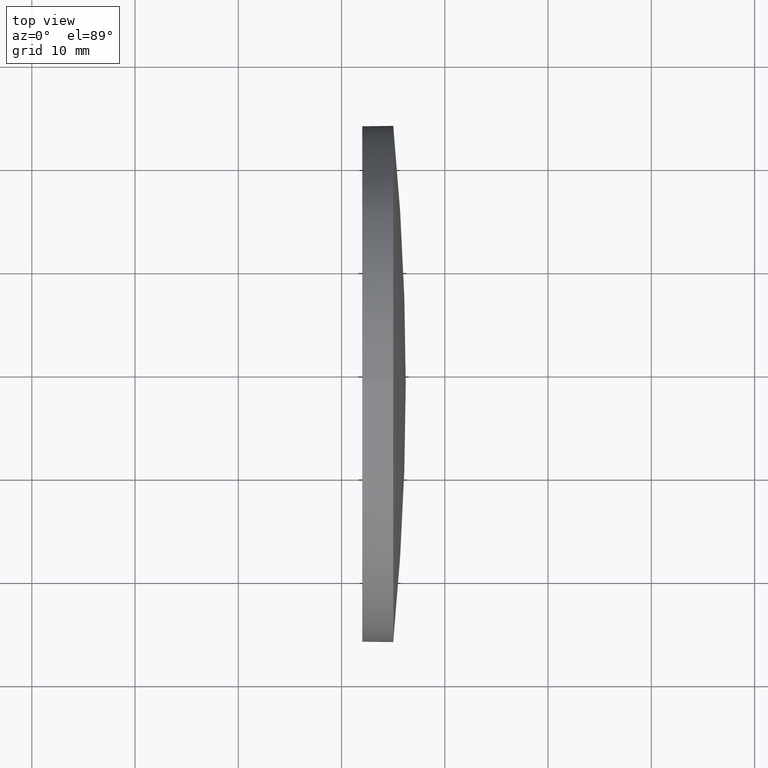
[diagram: clean part render]
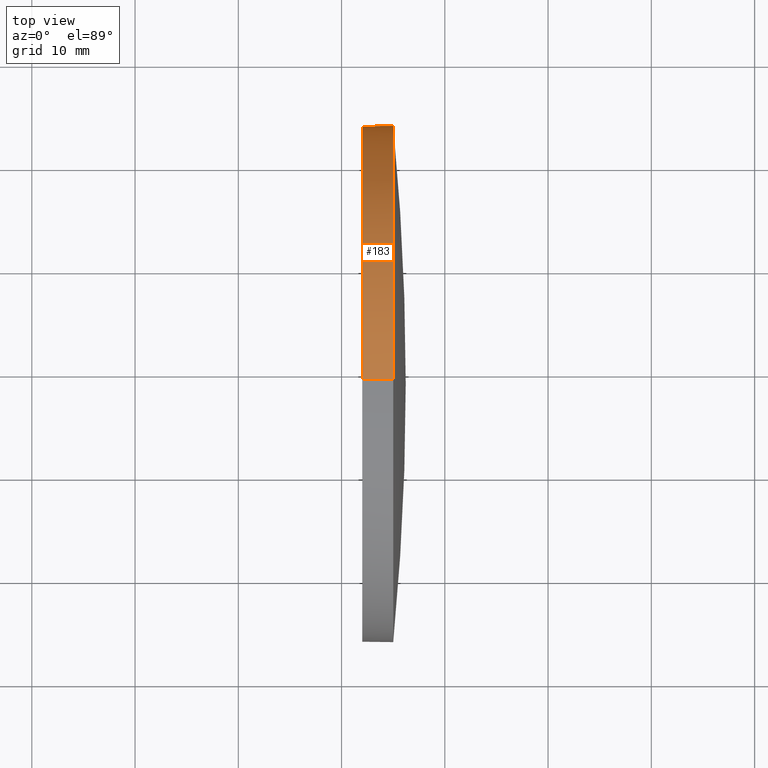
[diagram: same view with one face highlighted and labeled with its STEP entity id]
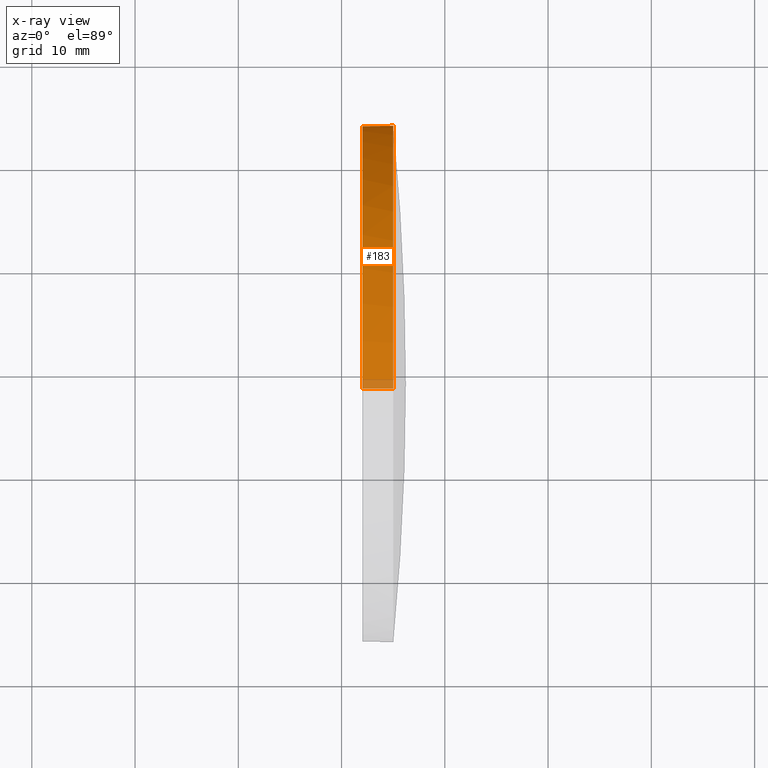
[diagram: x-ray of the same camera — body ghosted, the highlighted face saturated]
A machine part, top view. The second image highlights one B-rep face of the part: STEP entity #183.
The next image is the same camera in x-ray: the body ghosted, the highlighted face saturated — about 3% of this face is hidden behind the body in this view.
In plain terms, the highlighted cylindrical surface (partial cylindrical patch) has radius 25 mm, axis along (-1, -0, -0).
Its self-contained STEP definition (entity closure, byte-faithful):
#1 = DIRECTION ( 'NONE',  ( -1.000000000000000000, -0.0000000000000000000, -0.0000000000000000000 ) ) ;
#2 = DIRECTION ( 'NONE',  ( -1.000000000000000000, -0.0000000000000000000, -0.0000000000000000000 ) ) ;
#4 = CARTESIAN_POINT ( 'NONE',  ( 462.0046362820362400, 88.87131801322505000, 25.00000000000000700 ) ) ;
#10 = EDGE_CURVE ( 'NONE', #184, #167, #181, .T. ) ;
#13 = AXIS2_PLACEMENT_3D ( 'NONE', #74, #2, #104 ) ;
#23 = ORIENTED_EDGE ( 'NONE', *, *, #156, .F. ) ;
#28 = CARTESIAN_POINT ( 'NONE',  ( 465.0046362820362400, 113.8713180132250400, 0.0000000000000000000 ) ) ;
#40 = VERTEX_POINT ( 'NONE', #28 ) ;
#42 = VECTOR ( 'NONE', #124, 1000.000000000000000 ) ;
#44 = CIRCLE ( 'NONE', #129, 25.00000000000000700 ) ;
#45 = DIRECTION ( 'NONE',  ( -1.000000000000000000, -0.0000000000000000000, -0.0000000000000000000 ) ) ;
#48 = CIRCLE ( 'NONE', #13, 25.00000000000000700 ) ;
#51 = VERTEX_POINT ( 'NONE', #151 ) ;
#52 = AXIS2_PLACEMENT_3D ( 'NONE', #120, #106, #88 ) ;
#61 = ORIENTED_EDGE ( 'NONE', *, *, #123, .T. ) ;
#69 = CARTESIAN_POINT ( 'NONE',  ( 457.8596245327955800, 88.87131801322505000, 25.00000000000000700 ) ) ;
#74 = CARTESIAN_POINT ( 'NONE',  ( 465.0046362820362400, 88.87131801322505000, 0.0000000000000000000 ) ) ;
#75 = DIRECTION ( 'NONE',  ( 0.0000000000000000000, 0.0000000000000000000, 1.000000000000000000 ) ) ;
#78 = AXIS2_PLACEMENT_3D ( 'NONE', #148, #45, #176 ) ;
#81 = CYLINDRICAL_SURFACE ( 'NONE', #78, 25.00000000000000700 ) ;
#88 = DIRECTION ( 'NONE',  ( 0.0000000000000000000, 0.0000000000000000000, 1.000000000000000000 ) ) ;
#89 = FACE_OUTER_BOUND ( 'NONE', #139, .T. ) ;
#96 = EDGE_CURVE ( 'NONE', #40, #142, #158, .T. ) ;
#97 = LINE ( 'NONE', #182, #144 ) ;
#104 = DIRECTION ( 'NONE',  ( 0.0000000000000000000, 0.0000000000000000000, 1.000000000000000000 ) ) ;
#106 = DIRECTION ( 'NONE',  ( -1.000000000000000000, -0.0000000000000000000, -0.0000000000000000000 ) ) ;
#120 = CARTESIAN_POINT ( 'NONE',  ( 465.0046362820362400, 88.87131801322505000, 0.0000000000000000000 ) ) ;
#121 = CARTESIAN_POINT ( 'NONE',  ( 465.0046362820362400, 88.87131801322505000, -25.00000000000000700 ) ) ;
#122 = CARTESIAN_POINT ( 'NONE',  ( 465.0046362820362400, 88.87131801322505000, 25.00000000000000700 ) ) ;
#123 = EDGE_CURVE ( 'NONE', #142, #51, #97, .T. ) ;
#124 = DIRECTION ( 'NONE',  ( -1.000000000000000000, -0.0000000000000000000, -0.0000000000000000000 ) ) ;
#127 = ORIENTED_EDGE ( 'NONE', *, *, #96, .T. ) ;
#129 = AXIS2_PLACEMENT_3D ( 'NONE', #173, #1, #75 ) ;
#139 = EDGE_LOOP ( 'NONE', ( #127, #61, #23, #177, #185 ) ) ;
#142 = VERTEX_POINT ( 'NONE', #121 ) ;
#144 = VECTOR ( 'NONE', #157, 1000.000000000000000 ) ;
#148 = CARTESIAN_POINT ( 'NONE',  ( 457.8596245327955800, 88.87131801322505000, 0.0000000000000000000 ) ) ;
#151 = CARTESIAN_POINT ( 'NONE',  ( 462.0046362820362400, 88.87131801322505000, -25.00000000000000700 ) ) ;
#156 = EDGE_CURVE ( 'NONE', #167, #51, #44, .T. ) ;
#157 = DIRECTION ( 'NONE',  ( -1.000000000000000000, -0.0000000000000000000, -0.0000000000000000000 ) ) ;
#158 = CIRCLE ( 'NONE', #52, 25.00000000000000700 ) ;
#167 = VERTEX_POINT ( 'NONE', #4 ) ;
#173 = CARTESIAN_POINT ( 'NONE',  ( 462.0046362820362400, 88.87131801322505000, 0.0000000000000000000 ) ) ;
#176 = DIRECTION ( 'NONE',  ( 0.0000000000000000000, 0.0000000000000000000, 1.000000000000000000 ) ) ;
#177 = ORIENTED_EDGE ( 'NONE', *, *, #10, .F. ) ;
#178 = EDGE_CURVE ( 'NONE', #184, #40, #48, .T. ) ;
#181 = LINE ( 'NONE', #69, #42 ) ;
#182 = CARTESIAN_POINT ( 'NONE',  ( 457.8596245327955800, 88.87131801322505000, -25.00000000000000700 ) ) ;
#183 = ADVANCED_FACE ( 'NONE', ( #89 ), #81, .T. ) ;
#184 = VERTEX_POINT ( 'NONE', #122 ) ;
#185 = ORIENTED_EDGE ( 'NONE', *, *, #178, .T. ) ;